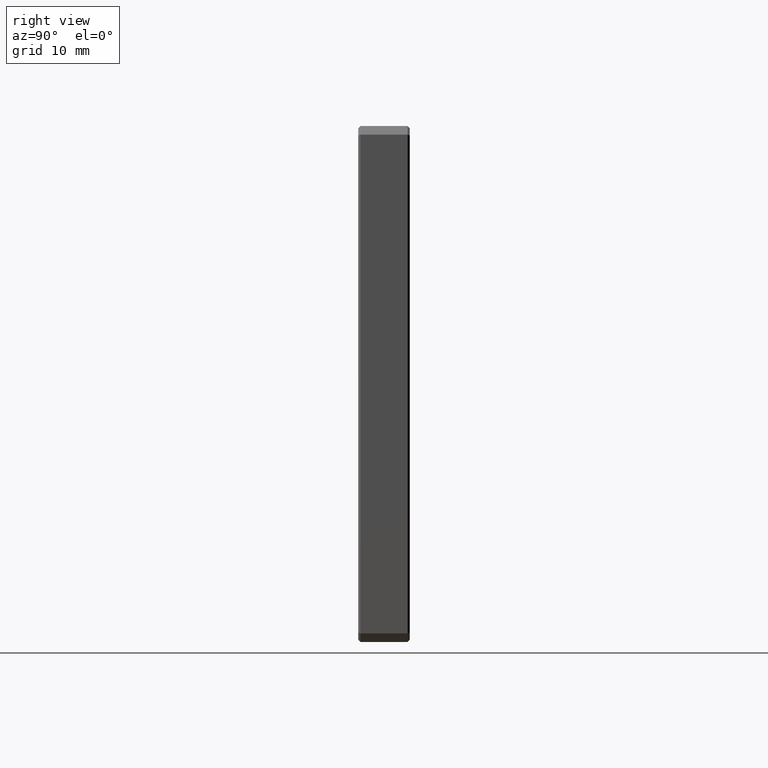
[diagram: clean part render]
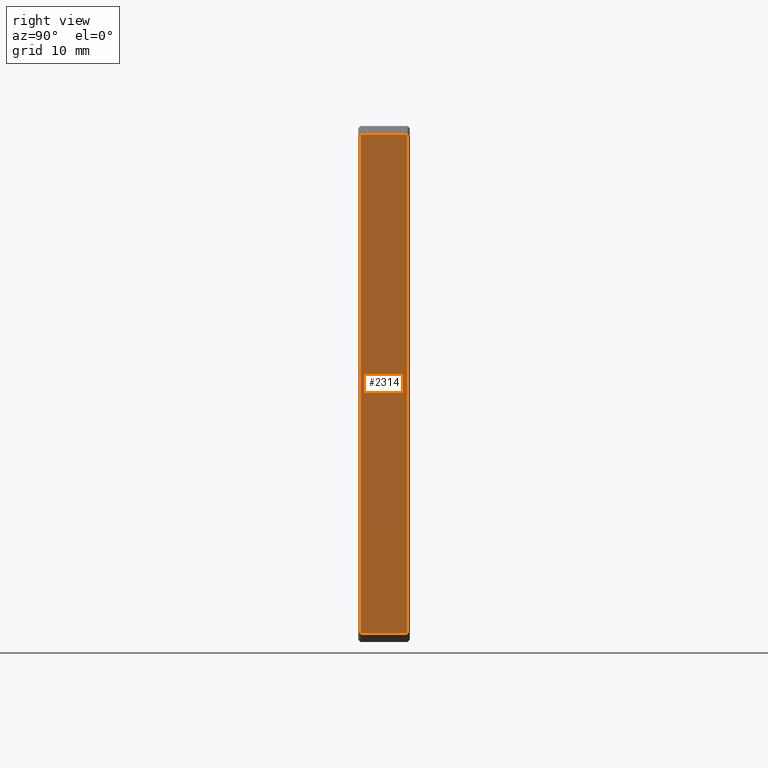
[diagram: same view with one face highlighted and labeled with its STEP entity id]
A machine part, right view. The second image highlights one B-rep face of the part: STEP entity #2314.
In plain terms, the highlighted planar face has unit normal (-1, 0, 0).
Its self-contained STEP definition (entity closure, byte-faithful):
#47 = CARTESIAN_POINT ( 'NONE',  ( 30.00000000000000000, 5.750000000000000000, -29.00000000000001066 ) ) ;
#131 = CARTESIAN_POINT ( 'NONE',  ( 30.00000000000000000, 0.2500000000000002220, -29.00000000000001066 ) ) ;
#224 = VECTOR ( 'NONE', #359, 1000.000000000000000 ) ;
#240 = CARTESIAN_POINT ( 'NONE',  ( 30.00000000000000000, 6.000000000000000000, 28.99999999999998579 ) ) ;
#288 = CARTESIAN_POINT ( 'NONE',  ( 30.00000000000000000, 6.000000000000000000, -30.00000000000000711 ) ) ;
#359 = DIRECTION ( 'NONE',  ( 0.000000000000000000, -0.000000000000000000, 1.000000000000000000 ) ) ;
#445 = VERTEX_POINT ( 'NONE', #131 ) ;
#564 = VERTEX_POINT ( 'NONE', #3036 ) ;
#587 = EDGE_LOOP ( 'NONE', ( #2864, #937, #2165, #2427 ) ) ;
#645 = LINE ( 'NONE', #888, #2289 ) ;
#801 = EDGE_CURVE ( 'NONE', #2020, #3030, #2651, .T. ) ;
#888 = CARTESIAN_POINT ( 'NONE',  ( 30.00000000000000000, 0.2500000000000002220, -30.00000000000000711 ) ) ;
#937 = ORIENTED_EDGE ( 'NONE', *, *, #1758, .T. ) ;
#991 = PLANE ( 'NONE',  #1126 ) ;
#1002 = LINE ( 'NONE', #240, #1212 ) ;
#1018 = VECTOR ( 'NONE', #1168, 1000.000000000000000 ) ;
#1124 = EDGE_CURVE ( 'NONE', #3030, #564, #1002, .T. ) ;
#1126 = AXIS2_PLACEMENT_3D ( 'NONE', #288, #1868, #2111 ) ;
#1168 = DIRECTION ( 'NONE',  ( 0.000000000000000000, 1.000000000000000000, 0.000000000000000000 ) ) ;
#1212 = VECTOR ( 'NONE', #1479, 1000.000000000000000 ) ;
#1479 = DIRECTION ( 'NONE',  ( 0.000000000000000000, -1.000000000000000000, 0.000000000000000000 ) ) ;
#1758 = EDGE_CURVE ( 'NONE', #564, #445, #645, .T. ) ;
#1868 = DIRECTION ( 'NONE',  ( -1.000000000000000000, 0.000000000000000000, 0.000000000000000000 ) ) ;
#2020 = VERTEX_POINT ( 'NONE', #47 ) ;
#2085 = CARTESIAN_POINT ( 'NONE',  ( 30.00000000000000000, 5.750000000000000000, 28.99999999999998579 ) ) ;
#2111 = DIRECTION ( 'NONE',  ( 0.000000000000000000, 0.000000000000000000, 1.000000000000000000 ) ) ;
#2154 = CARTESIAN_POINT ( 'NONE',  ( 30.00000000000000000, 6.000000000000000000, -29.00000000000001066 ) ) ;
#2165 = ORIENTED_EDGE ( 'NONE', *, *, #2338, .T. ) ;
#2289 = VECTOR ( 'NONE', #2538, 1000.000000000000000 ) ;
#2314 = ADVANCED_FACE ( 'NONE', ( #2328 ), #991, .F. ) ;
#2328 = FACE_OUTER_BOUND ( 'NONE', #587, .T. ) ;
#2338 = EDGE_CURVE ( 'NONE', #445, #2020, #2842, .T. ) ;
#2415 = CARTESIAN_POINT ( 'NONE',  ( 30.00000000000000000, 5.750000000000000000, 28.99999999999998579 ) ) ;
#2427 = ORIENTED_EDGE ( 'NONE', *, *, #801, .T. ) ;
#2538 = DIRECTION ( 'NONE',  ( 0.000000000000000000, 0.000000000000000000, -1.000000000000000000 ) ) ;
#2651 = LINE ( 'NONE', #2415, #224 ) ;
#2842 = LINE ( 'NONE', #2154, #1018 ) ;
#2864 = ORIENTED_EDGE ( 'NONE', *, *, #1124, .T. ) ;
#3030 = VERTEX_POINT ( 'NONE', #2085 ) ;
#3036 = CARTESIAN_POINT ( 'NONE',  ( 30.00000000000000000, 0.2500000000000002220, 28.99999999999998579 ) ) ;